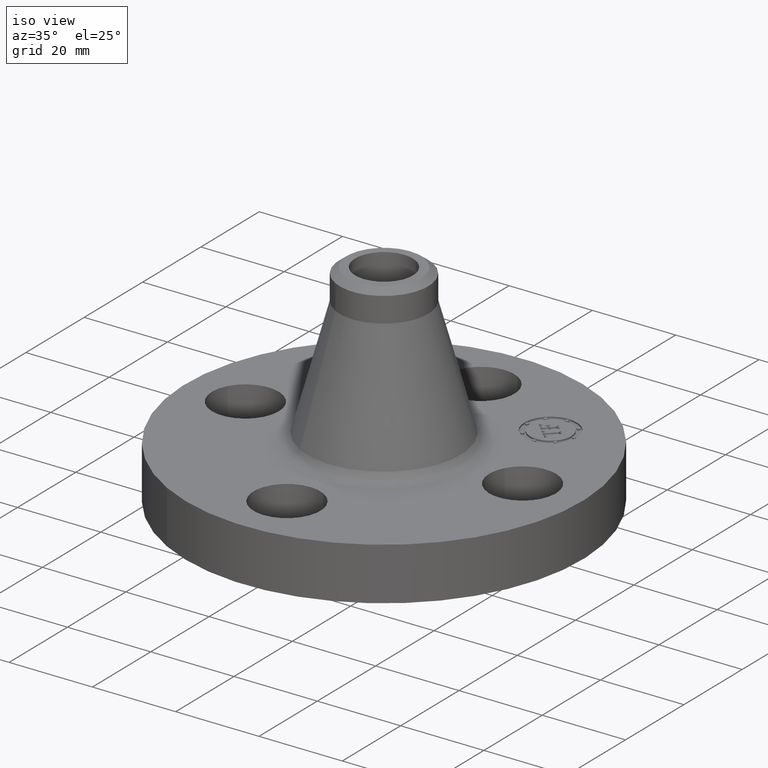
[diagram: clean part render]
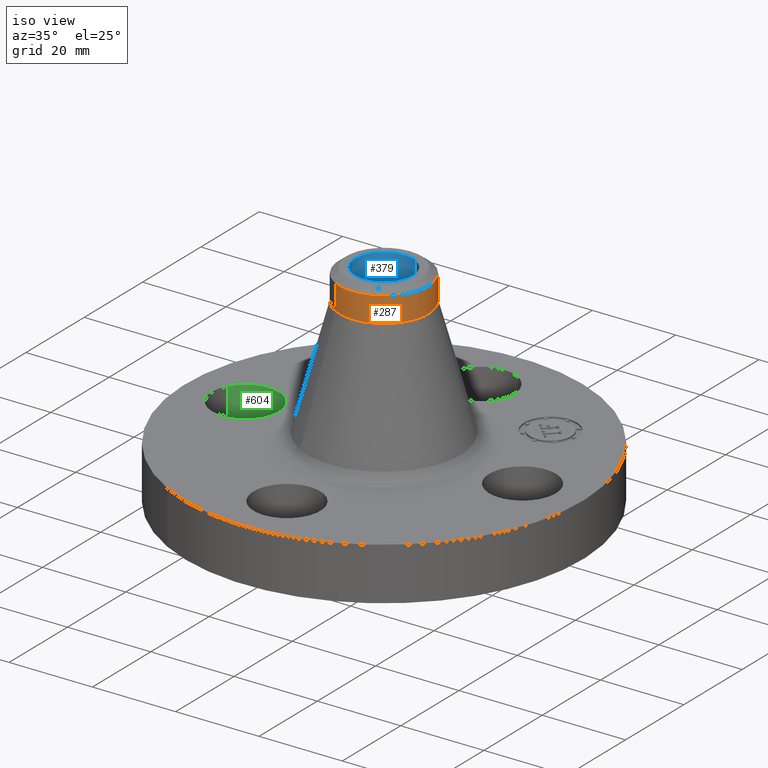
[diagram: same view with three faces highlighted in distinct colors, each labeled with its STEP entity id]
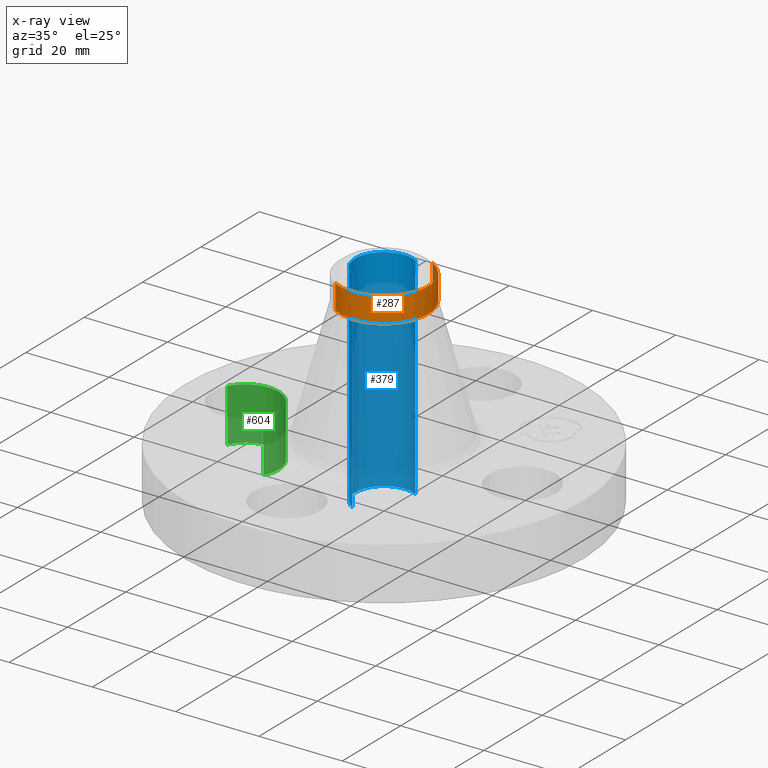
[diagram: x-ray of the same camera — body ghosted, the three highlighted faces saturated]
A machine part, iso view with three faces highlighted in distinct colors.
The next image is the same camera in x-ray (body ghosted, the three faces saturated) — at least one of them is partly hidden behind the body in this view.
Their STEP definitions:

[orange] entity #287 — the highlighted cylindrical surface (partial cylindrical patch) has radius 10.668 mm, axis along (0, 0, -1).
#220=AXIS2_PLACEMENT_3D('Circle Axis2P3D',#218,#219,$) ;
#252=AXIS2_PLACEMENT_3D('Cylinder Axis2P3D',#249,#250,#251) ;
#270=AXIS2_PLACEMENT_3D('Circle Axis2P3D',#268,#269,$) ;
#277=AXIS2_PLACEMENT_3D('Circle Axis2P3D',#275,#276,$) ;
#215=CARTESIAN_POINT('Vertex',(0.201358726215,0.368584675995,1.71140190821)) ;
#218=CARTESIAN_POINT('Axis2P3D Location',(0.,0.,1.71140190821)) ;
#222=CARTESIAN_POINT('Vertex',(-0.201358726215,-0.368584675995,1.71140190821)) ;
#249=CARTESIAN_POINT('Axis2P3D Location',(0.,0.,1.)) ;
#254=CARTESIAN_POINT('Line Origine',(-0.201358726215,-0.368584675995,1.82951214443)) ;
#258=CARTESIAN_POINT('Vertex',(-0.201358726215,-0.368584675995,1.94762238065)) ;
#261=CARTESIAN_POINT('Line Origine',(0.201358726215,0.368584675995,1.82951214443)) ;
#265=CARTESIAN_POINT('Vertex',(0.201358726215,0.368584675995,1.94762238065)) ;
#268=CARTESIAN_POINT('Axis2P3D Location',(0.,0.,1.94762238065)) ;
#272=CARTESIAN_POINT('Vertex',(0.201358726215,-0.368584675995,1.94762238065)) ;
#275=CARTESIAN_POINT('Axis2P3D Location',(0.,0.,1.94762238065)) ;
#219=DIRECTION('Axis2P3D Direction',(0.,0.,-0.0393700787402)) ;
#250=DIRECTION('Axis2P3D Direction',(0.,0.,-0.0393700787402)) ;
#251=DIRECTION('Axis2P3D XDirection',(-0.0188750212049,-0.0345504945626,0.)) ;
#255=DIRECTION('Vector Direction',(0.,0.,-0.0393700787402)) ;
#262=DIRECTION('Vector Direction',(0.,0.,-0.0393700787402)) ;
#269=DIRECTION('Axis2P3D Direction',(0.,0.,-0.0393700787402)) ;
#276=DIRECTION('Axis2P3D Direction',(0.,0.,-0.0393700787402)) ;
#256=VECTOR('Line Direction',#255,0.0393700787402) ;
#263=VECTOR('Line Direction',#262,0.0393700787402) ;
#281=ORIENTED_EDGE('',*,*,#260,.F.) ;
#282=ORIENTED_EDGE('',*,*,#224,.F.) ;
#283=ORIENTED_EDGE('',*,*,#267,.T.) ;
#284=ORIENTED_EDGE('',*,*,#274,.F.) ;
#285=ORIENTED_EDGE('',*,*,#279,.T.) ;
#287=ADVANCED_FACE('PartBody',(#286),#253,.T.) ;
#221=CIRCLE('generated circle',#220,0.420000000002) ;
#271=CIRCLE('generated circle',#270,0.420000000002) ;
#278=CIRCLE('generated circle',#277,0.420000000002) ;
#253=CYLINDRICAL_SURFACE('generated cylinder',#252,0.420000000002) ;
#224=EDGE_CURVE('',#216,#223,#221,.T.) ;
#260=EDGE_CURVE('',#223,#259,#257,.F.) ;
#267=EDGE_CURVE('',#216,#266,#264,.F.) ;
#274=EDGE_CURVE('',#273,#266,#271,.F.) ;
#279=EDGE_CURVE('',#273,#259,#278,.T.) ;
#280=EDGE_LOOP('',(#281,#282,#283,#284,#285)) ;
#286=FACE_OUTER_BOUND('',#280,.T.) ;
#257=LINE('Line',#254,#256) ;
#264=LINE('Line',#261,#263) ;
#216=VERTEX_POINT('',#215) ;
#223=VERTEX_POINT('',#222) ;
#259=VERTEX_POINT('',#258) ;
#266=VERTEX_POINT('',#265) ;
#273=VERTEX_POINT('',#272) ;

[blue] entity #379 — the highlighted cylindrical surface (edge-blend (fillet) strip) has radius 6.9342 mm, axis along (0, 0, -1).
#343=AXIS2_PLACEMENT_3D('Cylinder Axis2P3D',#340,#341,#342) ;
#347=AXIS2_PLACEMENT_3D('Circle Axis2P3D',#345,#346,$) ;
#363=AXIS2_PLACEMENT_3D('Circle Axis2P3D',#361,#362,$) ;
#340=CARTESIAN_POINT('Axis2P3D Location',(0.,0.,1.)) ;
#345=CARTESIAN_POINT('Axis2P3D Location',(0.,0.,2.00000000001)) ;
#349=CARTESIAN_POINT('Vertex',(-0.130883172039,-0.239580039397,2.00000000001)) ;
#351=CARTESIAN_POINT('Vertex',(0.130883172039,0.239580039397,2.00000000001)) ;
#354=CARTESIAN_POINT('Line Origine',(-0.130883172039,-0.239580039397,1.)) ;
#358=CARTESIAN_POINT('Vertex',(-0.130883172039,-0.239580039397,-5.59482469102E-016)) ;
#361=CARTESIAN_POINT('Axis2P3D Location',(0.,0.,-5.59482469102E-016)) ;
#365=CARTESIAN_POINT('Vertex',(0.130883172039,0.239580039397,-5.59482469102E-016)) ;
#368=CARTESIAN_POINT('Line Origine',(0.130883172039,0.239580039397,1.)) ;
#341=DIRECTION('Axis2P3D Direction',(0.,0.,-0.0393700787402)) ;
#342=DIRECTION('Axis2P3D XDirection',(0.0188750212049,0.0345504945626,0.)) ;
#346=DIRECTION('Axis2P3D Direction',(0.,0.,-0.0393700787402)) ;
#355=DIRECTION('Vector Direction',(0.,0.,-0.0393700787402)) ;
#362=DIRECTION('Axis2P3D Direction',(0.,0.,-0.0393700787402)) ;
#369=DIRECTION('Vector Direction',(0.,0.,-0.0393700787402)) ;
#356=VECTOR('Line Direction',#355,0.0393700787402) ;
#370=VECTOR('Line Direction',#369,0.0393700787402) ;
#374=ORIENTED_EDGE('',*,*,#353,.F.) ;
#375=ORIENTED_EDGE('',*,*,#360,.T.) ;
#376=ORIENTED_EDGE('',*,*,#367,.T.) ;
#377=ORIENTED_EDGE('',*,*,#372,.F.) ;
#379=ADVANCED_FACE('PartBody',(#378),#344,.F.) ;
#348=CIRCLE('generated circle',#347,0.273000000001) ;
#364=CIRCLE('generated circle',#363,0.273000000001) ;
#344=CYLINDRICAL_SURFACE('generated cylinder',#343,0.273000000001) ;
#353=EDGE_CURVE('',#350,#352,#348,.T.) ;
#360=EDGE_CURVE('',#350,#359,#357,.T.) ;
#367=EDGE_CURVE('',#359,#366,#364,.T.) ;
#372=EDGE_CURVE('',#352,#366,#371,.T.) ;
#373=EDGE_LOOP('',(#374,#375,#376,#377)) ;
#378=FACE_OUTER_BOUND('',#373,.T.) ;
#357=LINE('Line',#354,#356) ;
#371=LINE('Line',#368,#370) ;
#350=VERTEX_POINT('',#349) ;
#352=VERTEX_POINT('',#351) ;
#359=VERTEX_POINT('',#358) ;
#366=VERTEX_POINT('',#365) ;

[green] entity #604 — the highlighted cylindrical surface (partial cylindrical patch) has radius 8.001 mm, axis along (-0, 0, -1).
#493=AXIS2_PLACEMENT_3D('Circle Axis2P3D',#491,#492,$) ;
#565=AXIS2_PLACEMENT_3D('Cylinder Axis2P3D',#562,#563,#564) ;
#595=AXIS2_PLACEMENT_3D('Circle Axis2P3D',#593,#594,$) ;
#486=CARTESIAN_POINT('Vertex',(-1.03356149301,-0.151019044661,0.)) ;
#488=CARTESIAN_POINT('Vertex',(-1.586438507,0.151019044661,0.)) ;
#491=CARTESIAN_POINT('Axis2P3D Location',(-1.31000000001,-6.99353086378E-017,0.)) ;
#562=CARTESIAN_POINT('Axis2P3D Location',(-1.31000000001,-1.60428730689E-016,0.496062992128)) ;
#567=CARTESIAN_POINT('Line Origine',(-1.03356149301,-0.151019044661,0.250000000001)) ;
#571=CARTESIAN_POINT('Vertex',(-1.03356149301,-0.151019044661,0.500000000002)) ;
#574=CARTESIAN_POINT('Line Origine',(-1.586438507,0.151019044661,0.250000000001)) ;
#578=CARTESIAN_POINT('Vertex',(-1.586438507,0.151019044661,0.500000000002)) ;
#593=CARTESIAN_POINT('Axis2P3D Location',(-1.31000000001,-1.60428730689E-016,0.500000000002)) ;
#492=DIRECTION('Axis2P3D Direction',(0.,0.,-0.0393700787402)) ;
#563=DIRECTION('Axis2P3D Direction',(-0.,0.,-0.0393700787402)) ;
#564=DIRECTION('Axis2P3D XDirection',(-0.0345504945626,0.0188750212049,0.)) ;
#568=DIRECTION('Vector Direction',(0.,0.,-0.0393700787402)) ;
#575=DIRECTION('Vector Direction',(0.,0.,-0.0393700787402)) ;
#594=DIRECTION('Axis2P3D Direction',(-0.,0.,-0.0393700787402)) ;
#569=VECTOR('Line Direction',#568,0.0393700787402) ;
#576=VECTOR('Line Direction',#575,0.0393700787402) ;
#599=ORIENTED_EDGE('',*,*,#580,.F.) ;
#600=ORIENTED_EDGE('',*,*,#495,.T.) ;
#601=ORIENTED_EDGE('',*,*,#573,.T.) ;
#602=ORIENTED_EDGE('',*,*,#597,.F.) ;
#604=ADVANCED_FACE('PartBody',(#603),#566,.F.) ;
#494=CIRCLE('generated circle',#493,0.315000000001) ;
#596=CIRCLE('generated circle',#595,0.315000000001) ;
#566=CYLINDRICAL_SURFACE('generated cylinder',#565,0.315000000001) ;
#495=EDGE_CURVE('',#489,#487,#494,.T.) ;
#573=EDGE_CURVE('',#487,#572,#570,.F.) ;
#580=EDGE_CURVE('',#489,#579,#577,.F.) ;
#597=EDGE_CURVE('',#579,#572,#596,.T.) ;
#598=EDGE_LOOP('',(#599,#600,#601,#602)) ;
#603=FACE_OUTER_BOUND('',#598,.T.) ;
#570=LINE('Line',#567,#569) ;
#577=LINE('Line',#574,#576) ;
#487=VERTEX_POINT('',#486) ;
#489=VERTEX_POINT('',#488) ;
#572=VERTEX_POINT('',#571) ;
#579=VERTEX_POINT('',#578) ;